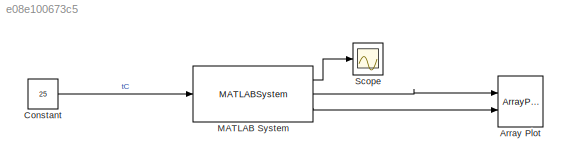
MODEL slx_e08e100673c5
KIND model
CONFIG AbsTol = auto
CONFIG EnableMultiTasking = off
CONFIG FixedStep = sampleTime
CONFIG MaxStep = auto
CONFIG MinStep = auto
CONFIG RelTol = 1e-3
CONFIG SampleTimeConstraint = Unconstrained
CONFIG Solver = FixedStepAuto
CONFIG SolverName = FixedStepAuto
CONFIG StartTime = 0.0
CONFIG StopTime = 1200
BLOCK [ArrayPlot] Array Plot
  NumInputPorts = 2
  Ports = [2]
  ScopeSpecificationString = dsp.scopes.ArrayPlotBlockSpecification('CurrentConfiguration', extmgr.ConfigurationSet(extmgr.Configuration('Core','General UI',true),extmgr.Configuration('Core','Source UI',true),extmgr.Configuration('Sources','WiredSimulink',true),extmgr.Configuration('Sources','SimulinkEvent',false),extmgr.Configuration('Sources','Simulink',false),extmgr.Configuration('Sources','SPTool',false),extmgr.Configurat...<+3100ch>
BLOCK [Constant] Constant
  Value = 25
BLOCK [MATLABSystem] MATLAB System
  MaskDisplay = disp('solver_system');\nport_label('input',1,'u');\nport_label('output',1,'c');\nport_label('output',2,'csd1');\nport_label('output',3,'csd2');
  MaskType = solver_system
  Ports = [1, 3]
  SimulateUsing = Interpreted execution
  System = solver_system
  ic = ic
  sampleTimeSecond = sampleTime
  solverObj = s
BLOCK [Scope] Scope
  Floating = off
  NumInputPorts = 1
  Ports = [1]
  ScopeSpecificationString = Simulink.scopes.TimeScopeBlockCfg('CurrentConfiguration', extmgr.ConfigurationSet(extmgr.Configuration('Core','General UI',true),extmgr.Configuration('Core','Source UI',true),extmgr.Configuration('Sources','WiredSimulink',true),extmgr.Configuration('Visuals','Time Domain',true,'PlotType','Line','SerializedDisplays',{struct('MinYLimReal','0.00451','MaxYLimReal','0.04034','YLabelReal','','MinYLimMag...<+1510ch>
LINE Constant:1 -> MATLAB System:1
LINE MATLAB System:1 -> Scope:1
LINE MATLAB System:2 -> Array Plot:1
LINE MATLAB System:3 -> Array Plot:2
